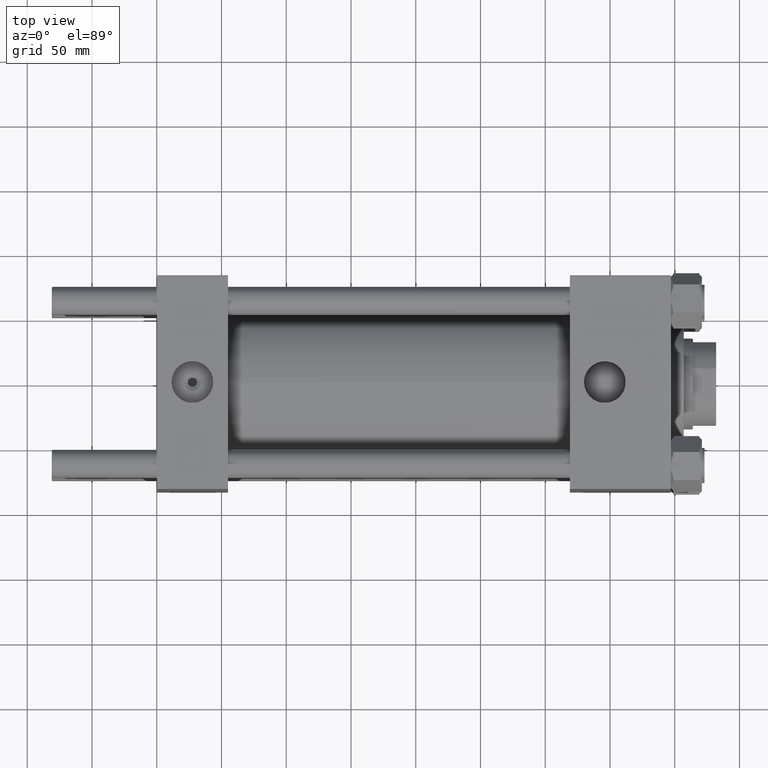
[diagram: clean part render]
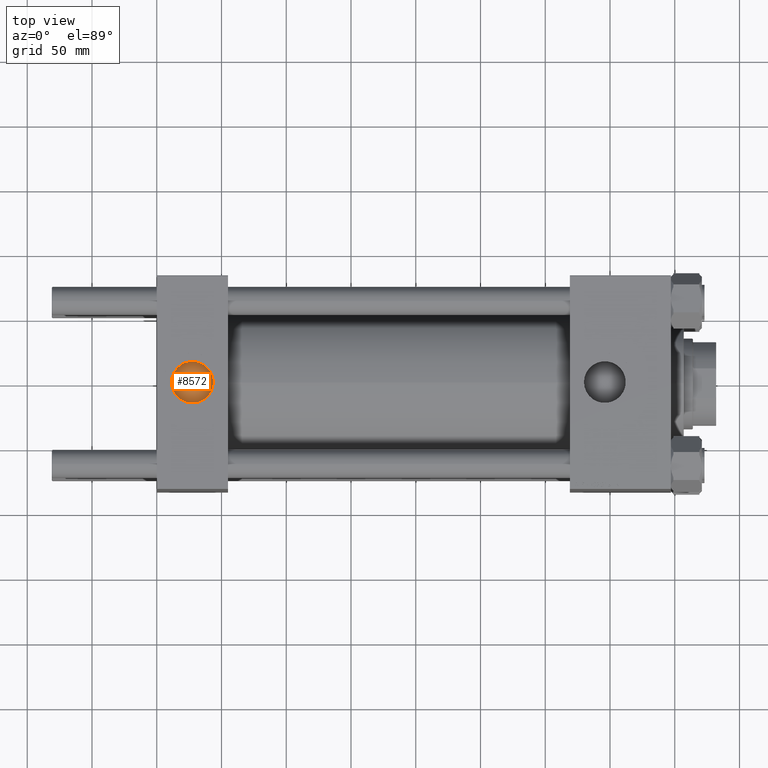
[diagram: same view with one face highlighted and labeled with its STEP entity id]
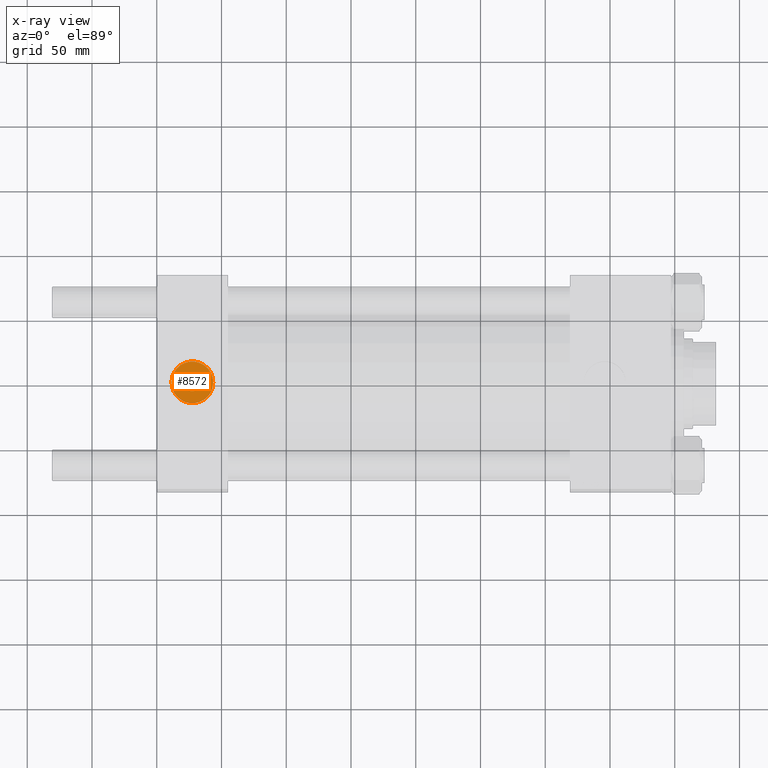
[diagram: x-ray of the same camera — body ghosted, the highlighted face saturated]
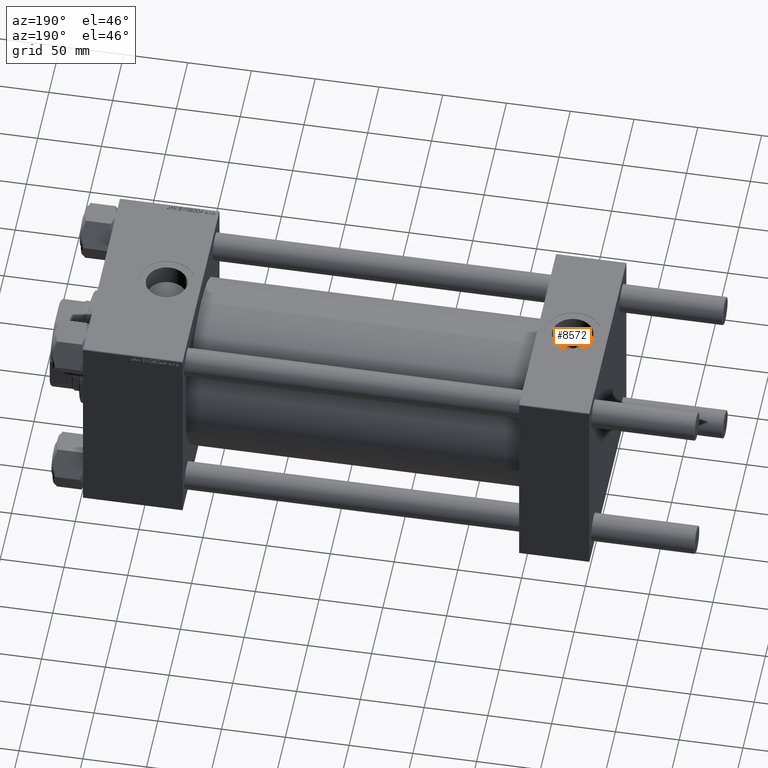
[diagram: same view with one face highlighted and labeled with its STEP entity id]
A machine part, top view. The second image highlights one B-rep face of the part: STEP entity #8572.
The next image is the same camera in x-ray: the body ghosted, the highlighted face saturated — about 0% of this face is hidden behind the body in this view.
A second angle (auxiliary view) of the same face is appended — the face is thin or edge-on in the first view.
In plain terms, the highlighted planar face has unit normal (0, 0, 1).
Its self-contained STEP definition (entity closure, byte-faithful):
#94 = VERTEX_POINT ( 'NONE', #32706 ) ;
#381 = EDGE_LOOP ( 'NONE', ( #48774, #20395 ) ) ;
#659 = CARTESIAN_POINT ( 'NONE',  ( 27.50000000000000000, -8.673617379884037050E-15, 71.70000000000001705 ) ) ;
#1171 = CIRCLE ( 'NONE', #50091, 16.12000000000000455 ) ;
#2248 = AXIS2_PLACEMENT_3D ( 'NONE', #659, #19540, #31544 ) ;
#5051 = DIRECTION ( 'NONE',  ( -0.000000000000000000, -0.000000000000000000, -1.000000000000000000 ) ) ;
#6201 = AXIS2_PLACEMENT_3D ( 'NONE', #45846, #41762, #49644 ) ;
#6350 = EDGE_CURVE ( 'NONE', #19935, #15682, #1171, .T. ) ;
#7013 = VERTEX_POINT ( 'NONE', #10169 ) ;
#8572 = ADVANCED_FACE ( 'NONE', ( #40247, #13185 ), #19823, .T. ) ;
#8752 = EDGE_CURVE ( 'NONE', #7013, #94, #46133, .T. ) ;
#8851 = CARTESIAN_POINT ( 'NONE',  ( 27.50000000000000000, -8.673617379884037050E-15, 71.70000000000001705 ) ) ;
#8921 = ORIENTED_EDGE ( 'NONE', *, *, #8752, .T. ) ;
#10169 = CARTESIAN_POINT ( 'NONE',  ( 20.85999999999996390, -7.860451905250190996E-15, 71.70000000000001705 ) ) ;
#11091 = AXIS2_PLACEMENT_3D ( 'NONE', #27750, #24912, #20316 ) ;
#13185 = FACE_OUTER_BOUND ( 'NONE', #381, .T. ) ;
#13421 = DIRECTION ( 'NONE',  ( 1.000000000000000000, 0.000000000000000000, 0.000000000000000000 ) ) ;
#13484 = EDGE_CURVE ( 'NONE', #15682, #19935, #35668, .T. ) ;
#15682 = VERTEX_POINT ( 'NONE', #44496 ) ;
#19540 = DIRECTION ( 'NONE',  ( 0.000000000000000000, 0.000000000000000000, 1.000000000000000000 ) ) ;
#19823 = PLANE ( 'NONE',  #11091 ) ;
#19935 = VERTEX_POINT ( 'NONE', #31358 ) ;
#20316 = DIRECTION ( 'NONE',  ( 1.000000000000000000, 0.000000000000000000, -0.000000000000000000 ) ) ;
#20395 = ORIENTED_EDGE ( 'NONE', *, *, #13484, .T. ) ;
#24912 = DIRECTION ( 'NONE',  ( 0.000000000000000000, 0.000000000000000000, 1.000000000000000000 ) ) ;
#26441 = CIRCLE ( 'NONE', #46015, 6.640000000000031655 ) ;
#27380 = ORIENTED_EDGE ( 'NONE', *, *, #49826, .T. ) ;
#27750 = CARTESIAN_POINT ( 'NONE',  ( 27.50000000000000000, -8.673617379884037050E-15, 71.70000000000001705 ) ) ;
#31358 = CARTESIAN_POINT ( 'NONE',  ( 43.62000000000000455, -8.673617379884037050E-15, 71.70000000000001705 ) ) ;
#31544 = DIRECTION ( 'NONE',  ( 1.000000000000000000, 0.000000000000000000, 0.000000000000000000 ) ) ;
#32706 = CARTESIAN_POINT ( 'NONE',  ( 34.14000000000002899, -8.673617379884037050E-15, 71.70000000000001705 ) ) ;
#33100 = CARTESIAN_POINT ( 'NONE',  ( 27.50000000000000000, -8.673617379884037050E-15, 71.70000000000001705 ) ) ;
#35668 = CIRCLE ( 'NONE', #2248, 16.12000000000000455 ) ;
#36192 = DIRECTION ( 'NONE',  ( 1.000000000000000000, 0.000000000000000000, 0.000000000000000000 ) ) ;
#40247 = FACE_BOUND ( 'NONE', #46999, .T. ) ;
#41762 = DIRECTION ( 'NONE',  ( -0.000000000000000000, -0.000000000000000000, -1.000000000000000000 ) ) ;
#43563 = DIRECTION ( 'NONE',  ( 0.000000000000000000, 0.000000000000000000, 1.000000000000000000 ) ) ;
#44496 = CARTESIAN_POINT ( 'NONE',  ( 11.37999999999999012, -6.699486739658503022E-15, 71.70000000000001705 ) ) ;
#45846 = CARTESIAN_POINT ( 'NONE',  ( 27.50000000000000000, -8.673617379884037050E-15, 71.70000000000001705 ) ) ;
#46015 = AXIS2_PLACEMENT_3D ( 'NONE', #33100, #5051, #36192 ) ;
#46133 = CIRCLE ( 'NONE', #6201, 6.640000000000031655 ) ;
#46999 = EDGE_LOOP ( 'NONE', ( #27380, #8921 ) ) ;
#48774 = ORIENTED_EDGE ( 'NONE', *, *, #6350, .T. ) ;
#49644 = DIRECTION ( 'NONE',  ( 1.000000000000000000, 0.000000000000000000, 0.000000000000000000 ) ) ;
#49826 = EDGE_CURVE ( 'NONE', #94, #7013, #26441, .T. ) ;
#50091 = AXIS2_PLACEMENT_3D ( 'NONE', #8851, #43563, #13421 ) ;